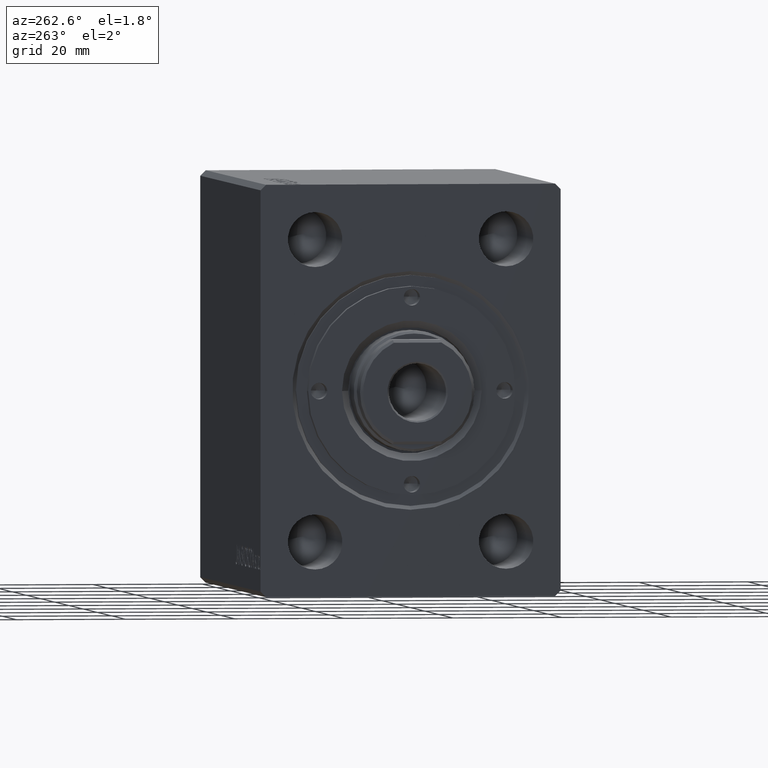
[diagram: clean part render]
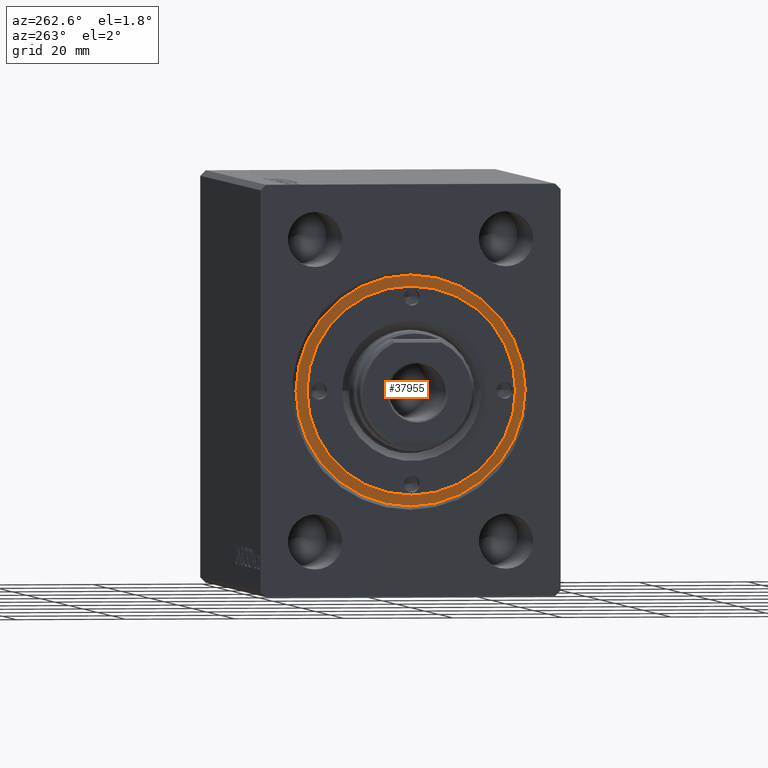
[diagram: same view with one face highlighted and labeled with its STEP entity id]
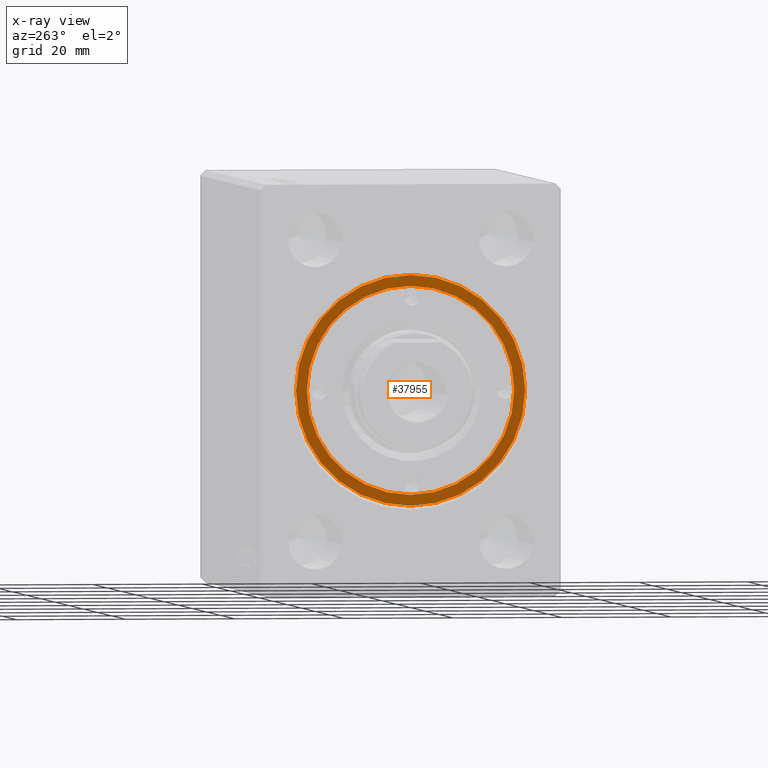
[diagram: x-ray of the same camera — body ghosted, the highlighted face saturated]
A machine part, auxiliary view. The second image highlights one B-rep face of the part: STEP entity #37955.
The next image is the same camera in x-ray: the body ghosted, the highlighted face saturated — about 0% of this face is hidden behind the body in this view.
In plain terms, the highlighted planar face has unit normal (-1, 0, 0).
Its self-contained STEP definition (entity closure, byte-faithful):
#133 = VERTEX_POINT ( 'NONE', #8457 ) ;
#168 = AXIS2_PLACEMENT_3D ( 'NONE', #24752, #39266, #2205 ) ;
#375 = AXIS2_PLACEMENT_3D ( 'NONE', #27063, #40685, #3187 ) ;
#1660 = DIRECTION ( 'NONE',  ( 1.000000000000000000, 0.000000000000000000, 0.000000000000000000 ) ) ;
#2205 = DIRECTION ( 'NONE',  ( 1.000000000000000000, 0.000000000000000000, -0.000000000000000000 ) ) ;
#3187 = DIRECTION ( 'NONE',  ( 1.000000000000000000, 0.000000000000000000, 0.000000000000000000 ) ) ;
#4879 = DIRECTION ( 'NONE',  ( 0.000000000000000000, 0.000000000000000000, 1.000000000000000000 ) ) ;
#5091 = DIRECTION ( 'NONE',  ( 1.000000000000000000, 0.000000000000000000, 0.000000000000000000 ) ) ;
#8011 = FACE_OUTER_BOUND ( 'NONE', #33271, .T. ) ;
#8457 = CARTESIAN_POINT ( 'NONE',  ( 21.00000000000000000, 2.571758278209441661E-15, 8.199999999999999289 ) ) ;
#10991 = AXIS2_PLACEMENT_3D ( 'NONE', #19474, #26642, #23283 ) ;
#11643 = CIRCLE ( 'NONE', #19478, 19.00000000000000000 ) ;
#11993 = CARTESIAN_POINT ( 'NONE',  ( 0.000000000000000000, 0.000000000000000000, 8.199999999999999289 ) ) ;
#12346 = CARTESIAN_POINT ( 'NONE',  ( -19.00000000000000000, 0.000000000000000000, 8.199999999999999289 ) ) ;
#14827 = VERTEX_POINT ( 'NONE', #31870 ) ;
#15018 = CARTESIAN_POINT ( 'NONE',  ( 0.000000000000000000, 0.000000000000000000, 8.199999999999999289 ) ) ;
#16593 = ORIENTED_EDGE ( 'NONE', *, *, #42817, .F. ) ;
#16669 = EDGE_CURVE ( 'NONE', #29420, #34172, #11643, .T. ) ;
#19474 = CARTESIAN_POINT ( 'NONE',  ( 0.000000000000000000, 0.000000000000000000, 8.199999999999999289 ) ) ;
#19478 = AXIS2_PLACEMENT_3D ( 'NONE', #11993, #4879, #5091 ) ;
#19582 = ORIENTED_EDGE ( 'NONE', *, *, #26735, .T. ) ;
#21630 = FACE_BOUND ( 'NONE', #35701, .T. ) ;
#22183 = ORIENTED_EDGE ( 'NONE', *, *, #36657, .T. ) ;
#23283 = DIRECTION ( 'NONE',  ( 1.000000000000000000, 0.000000000000000000, 0.000000000000000000 ) ) ;
#24752 = CARTESIAN_POINT ( 'NONE',  ( 0.000000000000000000, 0.000000000000000000, 8.199999999999999289 ) ) ;
#25150 = CARTESIAN_POINT ( 'NONE',  ( 19.00000000000000000, 2.326828918379970970E-15, 8.199999999999999289 ) ) ;
#26642 = DIRECTION ( 'NONE',  ( 0.000000000000000000, 0.000000000000000000, 1.000000000000000000 ) ) ;
#26735 = EDGE_CURVE ( 'NONE', #133, #14827, #41903, .T. ) ;
#27063 = CARTESIAN_POINT ( 'NONE',  ( 0.000000000000000000, 0.000000000000000000, 8.199999999999999289 ) ) ;
#29420 = VERTEX_POINT ( 'NONE', #12346 ) ;
#31870 = CARTESIAN_POINT ( 'NONE',  ( -21.00000000000000000, 0.000000000000000000, 8.199999999999999289 ) ) ;
#33271 = EDGE_LOOP ( 'NONE', ( #22183, #19582 ) ) ;
#34172 = VERTEX_POINT ( 'NONE', #25150 ) ;
#35143 = DIRECTION ( 'NONE',  ( 0.000000000000000000, 0.000000000000000000, 1.000000000000000000 ) ) ;
#35263 = PLANE ( 'NONE',  #168 ) ;
#35701 = EDGE_LOOP ( 'NONE', ( #39072, #16593 ) ) ;
#36657 = EDGE_CURVE ( 'NONE', #14827, #133, #39529, .T. ) ;
#37955 = ADVANCED_FACE ( 'NONE', ( #21630, #8011 ), #35263, .T. ) ;
#39072 = ORIENTED_EDGE ( 'NONE', *, *, #16669, .F. ) ;
#39266 = DIRECTION ( 'NONE',  ( 0.000000000000000000, 0.000000000000000000, 1.000000000000000000 ) ) ;
#39529 = CIRCLE ( 'NONE', #10991, 21.00000000000000000 ) ;
#39788 = AXIS2_PLACEMENT_3D ( 'NONE', #15018, #35143, #1660 ) ;
#40303 = CIRCLE ( 'NONE', #375, 19.00000000000000000 ) ;
#40685 = DIRECTION ( 'NONE',  ( 0.000000000000000000, 0.000000000000000000, 1.000000000000000000 ) ) ;
#41903 = CIRCLE ( 'NONE', #39788, 21.00000000000000000 ) ;
#42817 = EDGE_CURVE ( 'NONE', #34172, #29420, #40303, .T. ) ;